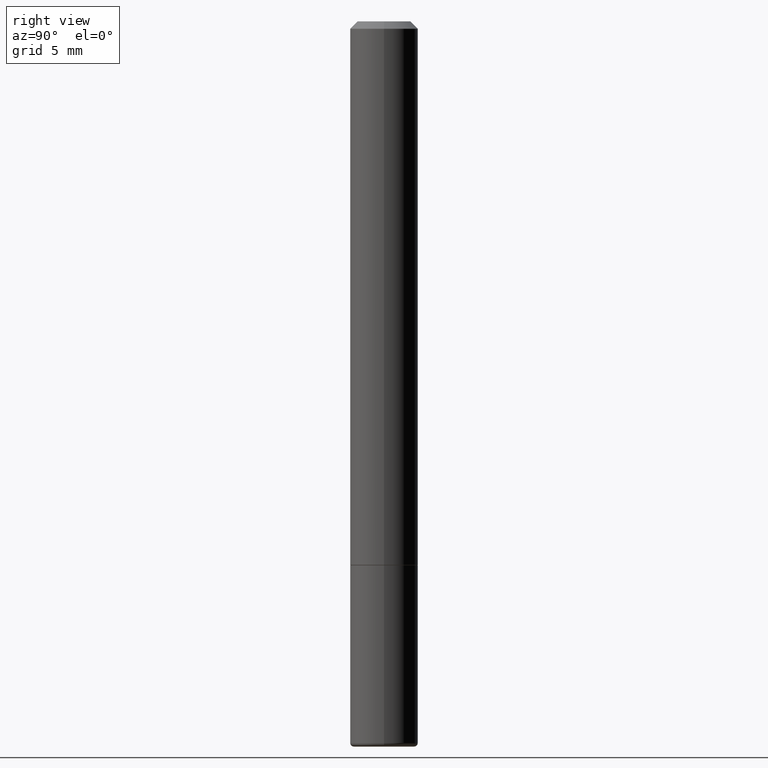
[diagram: clean part render]
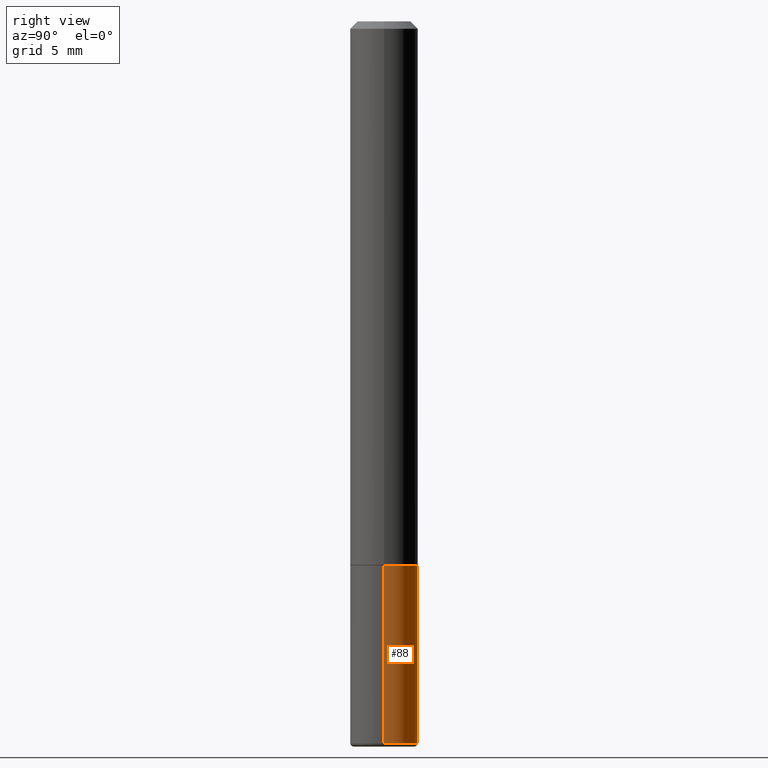
[diagram: same view with one face highlighted and labeled with its STEP entity id]
A machine part, right view. The second image highlights one B-rep face of the part: STEP entity #88.
In plain terms, the highlighted cylindrical surface (edge-blend (fillet) strip) has radius 2.3813 mm, axis along (-0, 0, 1).
Its self-contained STEP definition (entity closure, byte-faithful):
#8 = ORIENTED_EDGE ( 'NONE', *, *, #279, .T. ) ;
#20 = ORIENTED_EDGE ( 'NONE', *, *, #260, .F. ) ;
#23 = CARTESIAN_POINT ( 'NONE',  ( 0.09374999999999998612, -7.602700615330948598E-15, -1.989999999999999991 ) ) ;
#37 = CARTESIAN_POINT ( 'NONE',  ( 3.668203209277704335E-29, -5.237222008264717388E-15, -1.499999999999999778 ) ) ;
#58 = CIRCLE ( 'NONE', #349, 0.09375000000000002776 ) ;
#63 = CARTESIAN_POINT ( 'NONE',  ( -0.09375000000000001388, -5.426501121506194922E-15, -1.499999999999999778 ) ) ;
#74 = DIRECTION ( 'NONE',  ( 1.000000000000000000, -6.982962677686265922E-15, 4.876176775795935793E-29 ) ) ;
#88 = ADVANCED_FACE ( 'NONE', ( #297 ), #203, .T. ) ;
#93 = EDGE_CURVE ( 'NONE', #316, #100, #199, .T. ) ;
#95 = ORIENTED_EDGE ( 'NONE', *, *, #93, .F. ) ;
#100 = VERTEX_POINT ( 'NONE', #137 ) ;
#106 = CARTESIAN_POINT ( 'NONE',  ( 0.000000000000000000, 0.000000000000000000, 0.000000000000000000 ) ) ;
#118 = AXIS2_PLACEMENT_3D ( 'NONE', #37, #289, #415 ) ;
#137 = CARTESIAN_POINT ( 'NONE',  ( 0.09375000000000001388, -5.891874759297804892E-15, -1.499999999999999778 ) ) ;
#141 = CARTESIAN_POINT ( 'NONE',  ( 0.09375000000000002776, -6.546527510330876027E-16, 4.571415727308691207E-30 ) ) ;
#149 = DIRECTION ( 'NONE',  ( 1.000000000000000000, -6.982962677686270655E-15, 0.000000000000000000 ) ) ;
#161 = VECTOR ( 'NONE', #330, 39.37007874015748143 ) ;
#178 = DIRECTION ( 'NONE',  ( -2.445468806185136597E-29, 3.491481338843145583E-15, 1.000000000000000000 ) ) ;
#199 = LINE ( 'NONE', #141, #161 ) ;
#203 = CYLINDRICAL_SURFACE ( 'NONE', #337, 0.09375000000000002776 ) ;
#228 = ORIENTED_EDGE ( 'NONE', *, *, #356, .T. ) ;
#233 = DIRECTION ( 'NONE',  ( -2.445468806185136597E-29, 3.491481338843145583E-15, 1.000000000000000000 ) ) ;
#252 = VERTEX_POINT ( 'NONE', #63 ) ;
#254 = EDGE_LOOP ( 'NONE', ( #228, #8, #20, #95 ) ) ;
#260 = EDGE_CURVE ( 'NONE', #100, #252, #372, .T. ) ;
#265 = LINE ( 'NONE', #274, #314 ) ;
#267 = CARTESIAN_POINT ( 'NONE',  ( -0.09374999999999998612, -6.281914049522767170E-15, -1.989999999999999991 ) ) ;
#269 = DIRECTION ( 'NONE',  ( -2.445468806185136877E-29, 3.491481338843145188E-15, 1.000000000000000000 ) ) ;
#274 = CARTESIAN_POINT ( 'NONE',  ( -0.09375000000000002776, 6.661338147750941215E-16, -4.611501647113975397E-30 ) ) ;
#279 = EDGE_CURVE ( 'NONE', #310, #252, #265, .T. ) ;
#289 = DIRECTION ( 'NONE',  ( -2.445468806185136597E-29, 3.491481338843145583E-15, 1.000000000000000000 ) ) ;
#297 = FACE_OUTER_BOUND ( 'NONE', #254, .T. ) ;
#310 = VERTEX_POINT ( 'NONE', #267 ) ;
#314 = VECTOR ( 'NONE', #269, 39.37007874015748143 ) ;
#316 = VERTEX_POINT ( 'NONE', #23 ) ;
#330 = DIRECTION ( 'NONE',  ( -2.445468806185136877E-29, 3.491481338843145188E-15, 1.000000000000000000 ) ) ;
#337 = AXIS2_PLACEMENT_3D ( 'NONE', #106, #233, #74 ) ;
#347 = CARTESIAN_POINT ( 'NONE',  ( 4.866482924308422209E-29, -6.948047864297860305E-15, -1.989999999999999991 ) ) ;
#349 = AXIS2_PLACEMENT_3D ( 'NONE', #347, #178, #149 ) ;
#356 = EDGE_CURVE ( 'NONE', #316, #310, #58, .T. ) ;
#372 = CIRCLE ( 'NONE', #118, 0.09375000000000001388 ) ;
#415 = DIRECTION ( 'NONE',  ( 1.000000000000000000, -6.982962677686261189E-15, 0.000000000000000000 ) ) ;